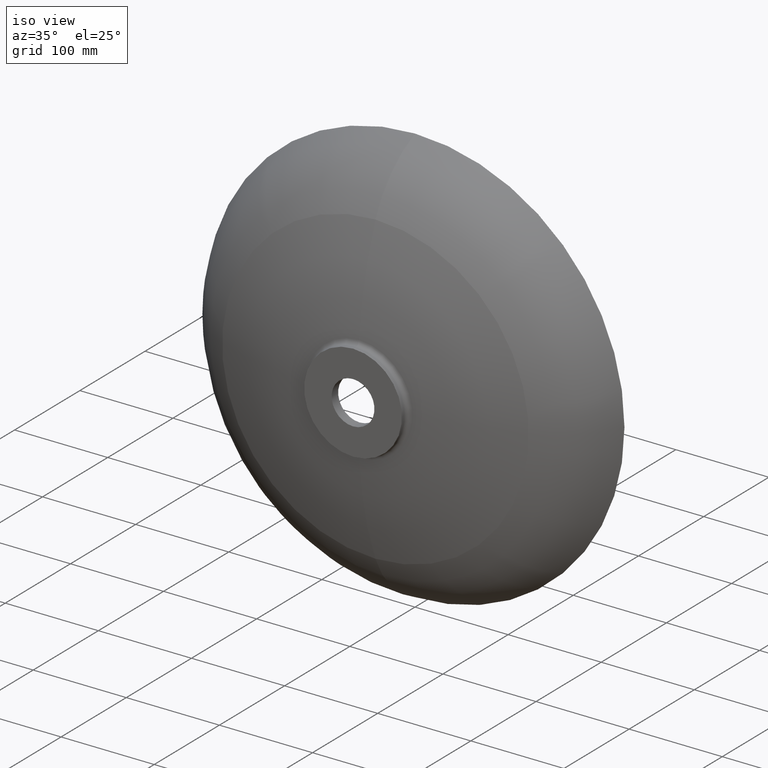
[diagram: clean part render]
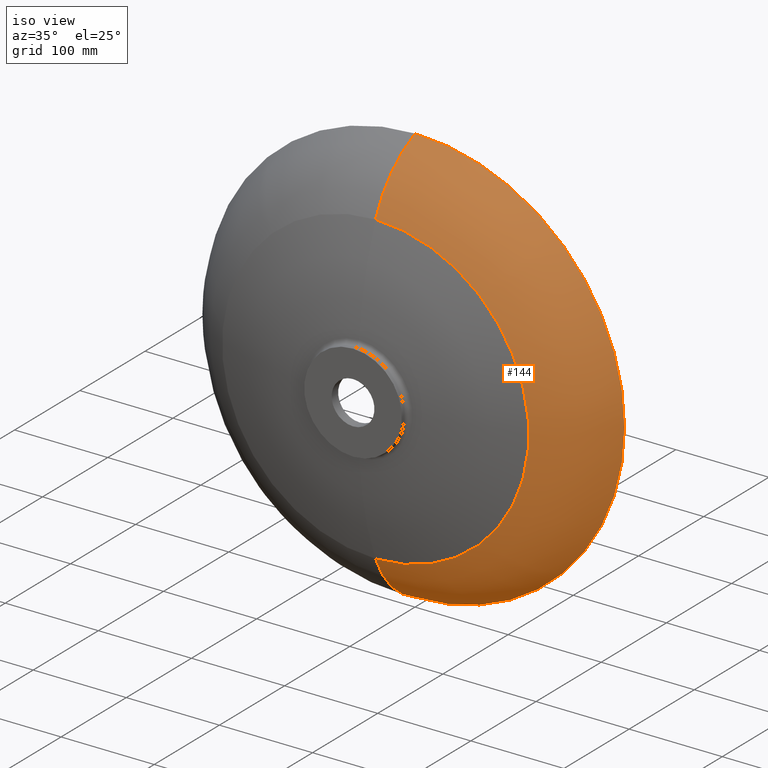
[diagram: tour spotlight — one face highlighted and labeled with its STEP entity id]
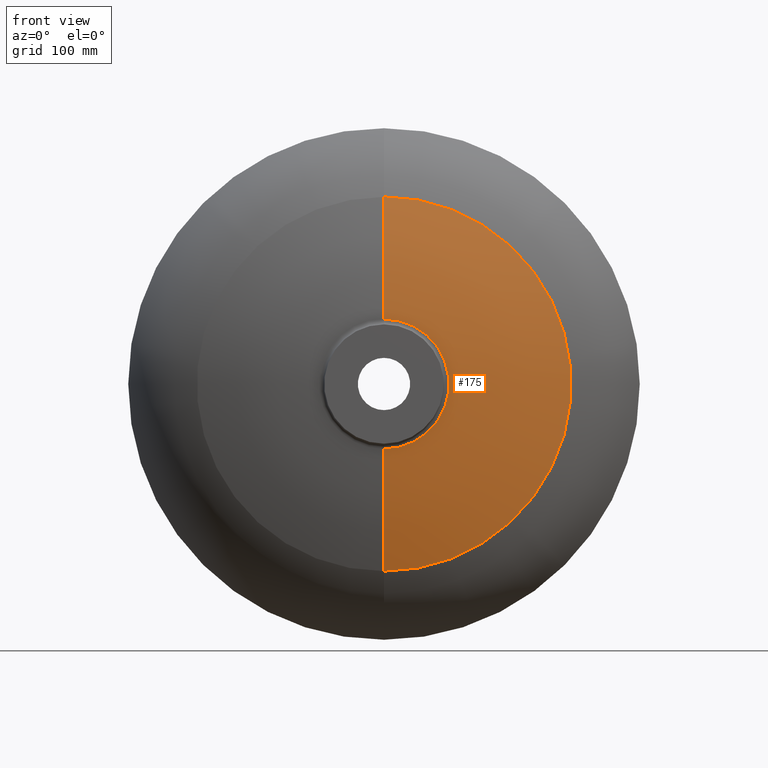
[diagram: tour spotlight — one face highlighted and labeled with its STEP entity id]
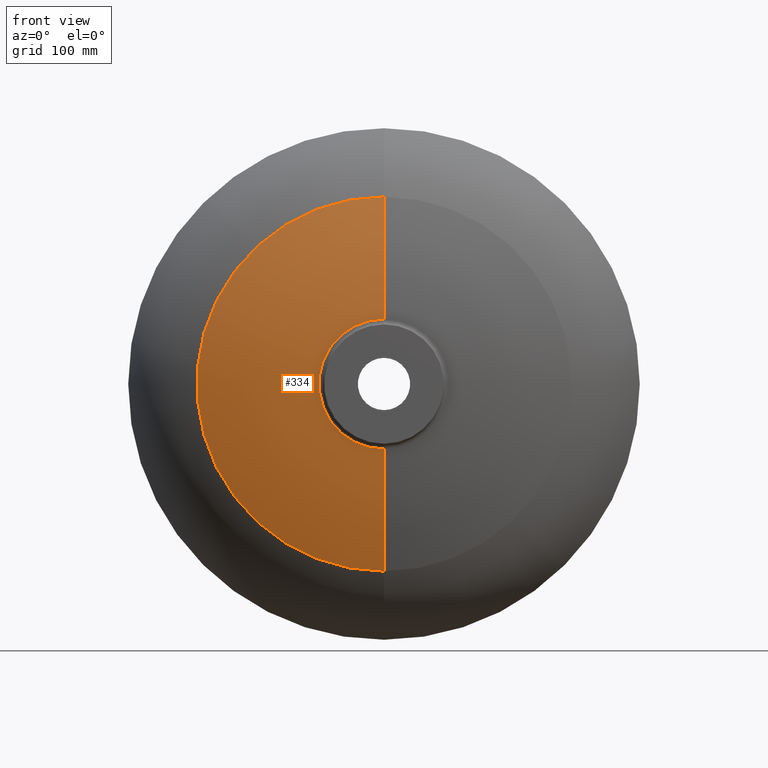
[diagram: tour spotlight — one face highlighted and labeled with its STEP entity id]
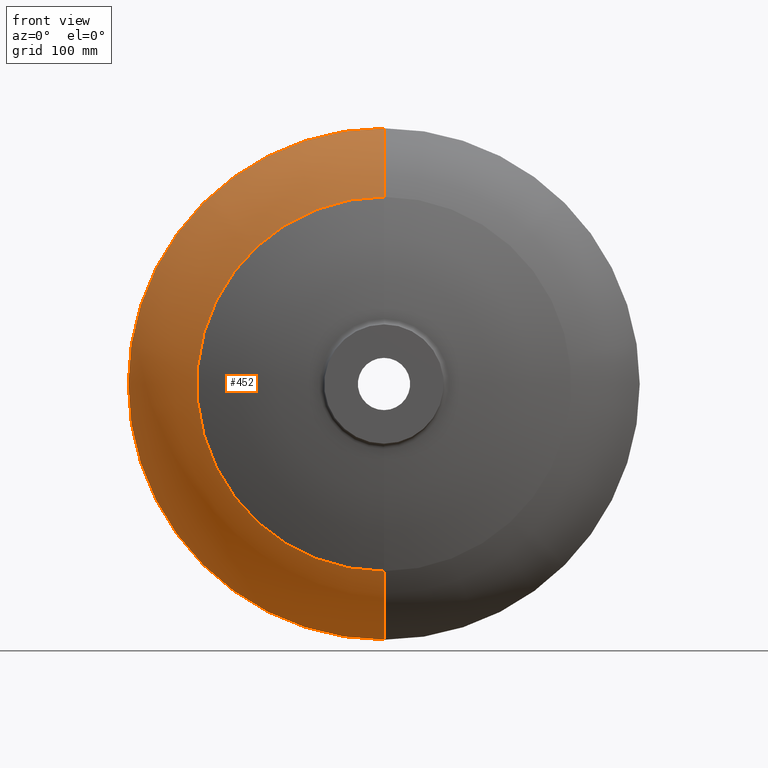
[diagram: tour spotlight — one face highlighted and labeled with its STEP entity id]
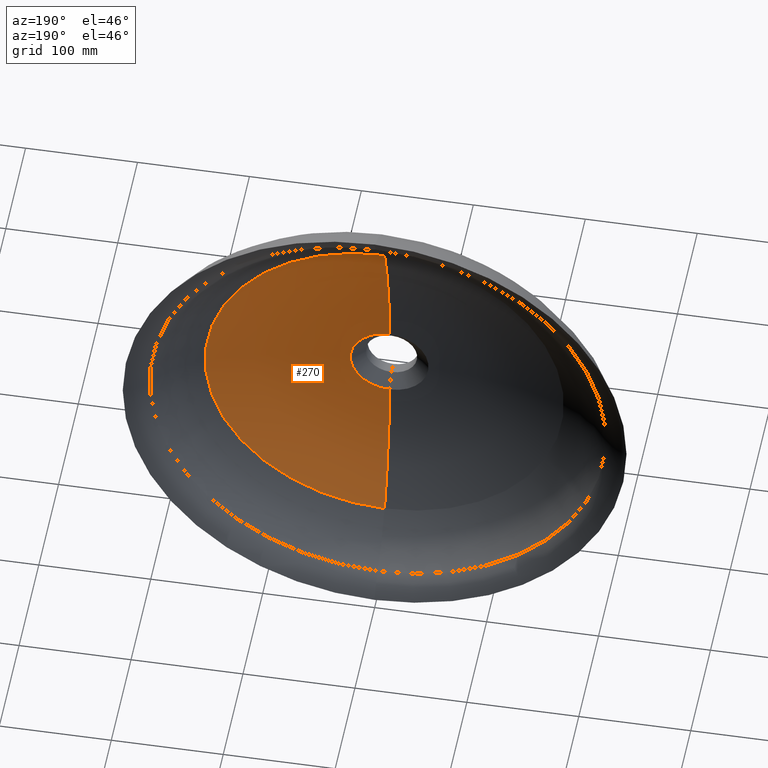
[diagram: tour spotlight — one face highlighted and labeled with its STEP entity id]
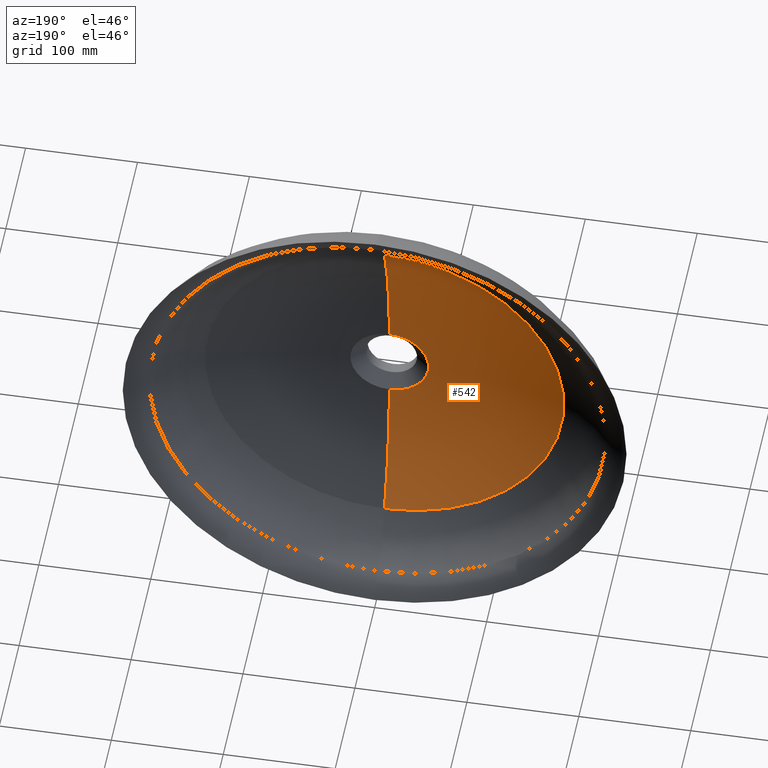
[diagram: tour spotlight — one face highlighted and labeled with its STEP entity id]
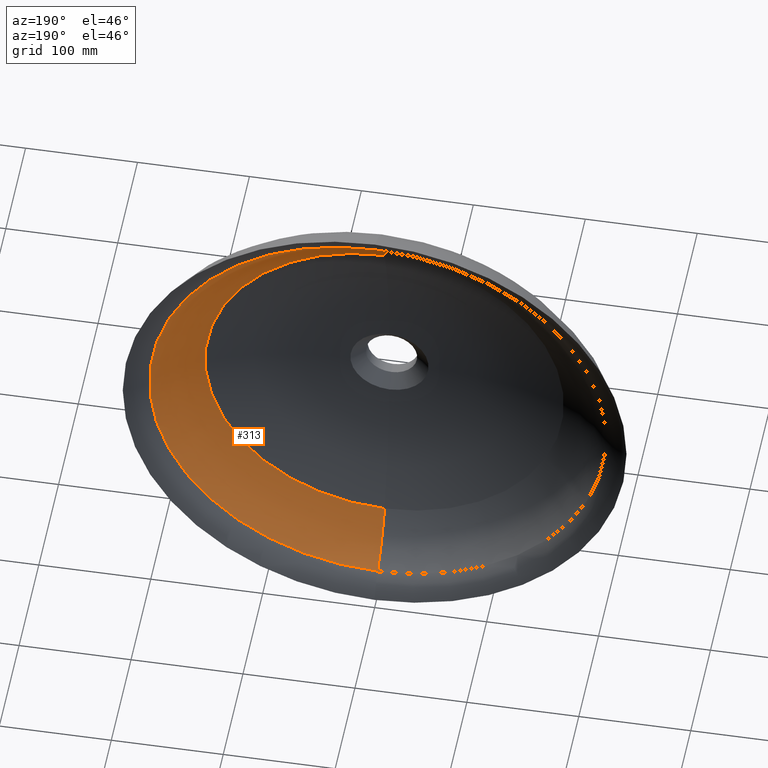
[diagram: tour spotlight — one face highlighted and labeled with its STEP entity id]
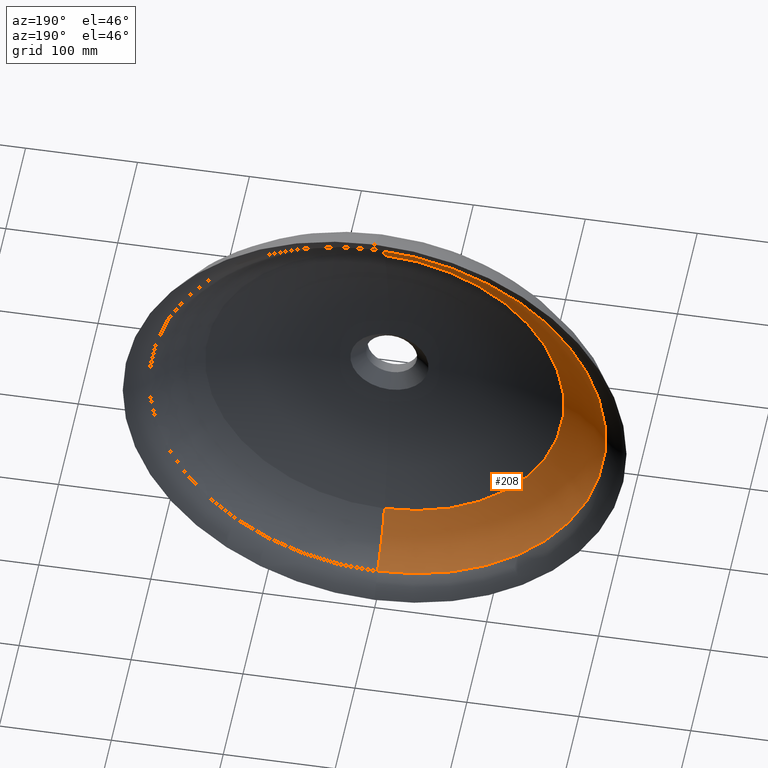
[diagram: tour spotlight — one face highlighted and labeled with its STEP entity id]
A machine part: a face-by-face anatomy tour. The part has 19 B-rep faces; the first image is the clean iso view, then the 8 largest visible faces are spotlighted one at a time (largest first), each with its STEP entity span.

Face 1 — iso view, entity #144. In plain terms, the highlighted toroidal blend (fillet) surface has major radius 121.91 mm and minor (blend) radius 111.45 mm.
Definition (entity closure, byte-faithful):
#4 = TOROIDAL_SURFACE ( 'NONE', #234, 121.9101096011546872, 111.4495278588973406 ) ;
#12 = DIRECTION ( 'NONE',  ( 0.0000000000000000000, 0.0000000000000000000, 1.000000000000000000 ) ) ;
#71 = EDGE_CURVE ( 'NONE', #429, #230, #428, .T. ) ;
#113 = CARTESIAN_POINT ( 'NONE',  ( 2.775557561562891351E-14, 42.34940091105409010, 0.0000000000000000000 ) ) ;
#144 = ADVANCED_FACE ( 'NONE', ( #252 ), #4, .T. ) ;
#167 = DIRECTION ( 'NONE',  ( -1.000000000000000000, 0.0000000000000000000, 0.0000000000000000000 ) ) ;
#178 = CARTESIAN_POINT ( 'NONE',  ( 2.775557561562891351E-14, -3.469446951953614189E-15, 225.0000000000000284 ) ) ;
#184 = DIRECTION ( 'NONE',  ( 0.0000000000000000000, 0.0000000000000000000, 1.000000000000000000 ) ) ;
#220 = CARTESIAN_POINT ( 'NONE',  ( 2.135878279796443735E-14, -60.57357038483590372, 164.6635800988411518 ) ) ;
#230 = VERTEX_POINT ( 'NONE', #235 ) ;
#234 = AXIS2_PLACEMENT_3D ( 'NONE', #113, #464, #238 ) ;
#235 = CARTESIAN_POINT ( 'NONE',  ( 5.531012859644435971E-14, -3.469446951953614189E-15, -225.0000000000000284 ) ) ;
#238 = DIRECTION ( 'NONE',  ( 0.0000000000000000000, 0.0000000000000000000, 1.000000000000000000 ) ) ;
#252 = FACE_OUTER_BOUND ( 'NONE', #440, .T. ) ;
#266 = CIRCLE ( 'NONE', #451, 164.6635800988411518 ) ;
#302 = ORIENTED_EDGE ( 'NONE', *, *, #422, .F. ) ;
#326 = AXIS2_PLACEMENT_3D ( 'NONE', #525, #167, #12 ) ;
#333 = ORIENTED_EDGE ( 'NONE', *, *, #360, .F. ) ;
#340 = DIRECTION ( 'NONE',  ( 0.0000000000000000000, 0.0000000000000000000, 1.000000000000000000 ) ) ;
#346 = EDGE_CURVE ( 'NONE', #357, #429, #266, .T. ) ;
#357 = VERTEX_POINT ( 'NONE', #220 ) ;
#360 = EDGE_CURVE ( 'NONE', #357, #472, #365, .T. ) ;
#362 = DIRECTION ( 'NONE',  ( -0.0000000000000000000, 1.000000000000000000, -0.0000000000000000000 ) ) ;
#363 = ORIENTED_EDGE ( 'NONE', *, *, #71, .T. ) ;
#365 = CIRCLE ( 'NONE', #326, 111.4495278588973264 ) ;
#372 = AXIS2_PLACEMENT_3D ( 'NONE', #479, #362, #184 ) ;
#394 = AXIS2_PLACEMENT_3D ( 'NONE', #411, #420, #417 ) ;
#397 = CIRCLE ( 'NONE', #372, 225.0000000000000284 ) ;
#409 = CARTESIAN_POINT ( 'NONE',  ( 5.161558842124611715E-14, -60.57357038483590372, -164.6635800988411518 ) ) ;
#411 = CARTESIAN_POINT ( 'NONE',  ( 4.268525816630462138E-14, 42.34940091105409010, -121.9101096011546872 ) ) ;
#417 = DIRECTION ( 'NONE',  ( 1.224646799147353700E-16, 0.0000000000000000000, -1.000000000000000000 ) ) ;
#420 = DIRECTION ( 'NONE',  ( 1.000000000000000000, 0.0000000000000000000, 1.224646799147353207E-16 ) ) ;
#422 = EDGE_CURVE ( 'NONE', #472, #230, #397, .T. ) ;
#428 = CIRCLE ( 'NONE', #394, 111.4495278588973264 ) ;
#429 = VERTEX_POINT ( 'NONE', #409 ) ;
#440 = EDGE_LOOP ( 'NONE', ( #488, #363, #302, #333 ) ) ;
#446 = CARTESIAN_POINT ( 'NONE',  ( 2.135878279796443735E-14, -60.57357038483590372, 0.0000000000000000000 ) ) ;
#451 = AXIS2_PLACEMENT_3D ( 'NONE', #446, #458, #340 ) ;
#458 = DIRECTION ( 'NONE',  ( -0.0000000000000000000, 1.000000000000000000, -0.0000000000000000000 ) ) ;
#464 = DIRECTION ( 'NONE',  ( -0.0000000000000000000, 1.000000000000000000, -0.0000000000000000000 ) ) ;
#472 = VERTEX_POINT ( 'NONE', #178 ) ;
#479 = CARTESIAN_POINT ( 'NONE',  ( 2.135878279796443735E-14, 0.0000000000000000000, 0.0000000000000000000 ) ) ;
#488 = ORIENTED_EDGE ( 'NONE', *, *, #346, .T. ) ;
#525 = CARTESIAN_POINT ( 'NONE',  ( 2.775557561562891351E-14, 42.34940091105409010, 121.9101096011546872 ) ) ;

Face 2 — front view, entity #175. In plain terms, the highlighted toroidal blend (fillet) surface has major radius 34.9175 mm and minor (blend) radius 338.221 mm.
Definition (entity closure, byte-faithful):
#5 = AXIS2_PLACEMENT_3D ( 'NONE', #174, #145, #434 ) ;
#46 = ORIENTED_EDGE ( 'NONE', *, *, #346, .F. ) ;
#54 = ORIENTED_EDGE ( 'NONE', *, *, #463, .F. ) ;
#70 = DIRECTION ( 'NONE',  ( -0.0000000000000000000, 1.000000000000000000, -0.0000000000000000000 ) ) ;
#114 = CARTESIAN_POINT ( 'NONE',  ( 2.081668171172168513E-14, 251.7717953764113190, 0.0000000000000000000 ) ) ;
#124 = ORIENTED_EDGE ( 'NONE', *, *, #373, .T. ) ;
#141 = TOROIDAL_SURFACE ( 'NONE', #505, 34.91753592594216826, 338.2213232353086596 ) ;
#142 = CIRCLE ( 'NONE', #5, 338.2213232353086596 ) ;
#145 = DIRECTION ( 'NONE',  ( -1.000000000000000000, 0.0000000000000000000, 0.0000000000000000000 ) ) ;
#147 = ORIENTED_EDGE ( 'NONE', *, *, #297, .T. ) ;
#156 = AXIS2_PLACEMENT_3D ( 'NONE', #438, #369, #345 ) ;
#161 = AXIS2_PLACEMENT_3D ( 'NONE', #206, #296, #166 ) ;
#166 = DIRECTION ( 'NONE',  ( 0.0000000000000000000, 0.0000000000000000000, 1.000000000000000000 ) ) ;
#174 = CARTESIAN_POINT ( 'NONE',  ( 2.081668171172168513E-14, 251.7717953764113190, 34.91753592594216826 ) ) ;
#175 = ADVANCED_FACE ( 'NONE', ( #249 ), #141, .T. ) ;
#204 = CARTESIAN_POINT ( 'NONE',  ( 3.440013347177337835E-14, -85.71664273050069482, -57.17102183714597885 ) ) ;
#206 = CARTESIAN_POINT ( 'NONE',  ( 2.135878279796443735E-14, -85.71664273050069482, 0.0000000000000000000 ) ) ;
#220 = CARTESIAN_POINT ( 'NONE',  ( 2.135878279796443735E-14, -60.57357038483590372, 164.6635800988411518 ) ) ;
#249 = FACE_OUTER_BOUND ( 'NONE', #406, .T. ) ;
#257 = VERTEX_POINT ( 'NONE', #204 ) ;
#266 = CIRCLE ( 'NONE', #451, 164.6635800988411518 ) ;
#274 = DIRECTION ( 'NONE',  ( 0.0000000000000000000, 0.0000000000000000000, 1.000000000000000000 ) ) ;
#285 = CIRCLE ( 'NONE', #161, 57.17102183714597885 ) ;
#296 = DIRECTION ( 'NONE',  ( -0.0000000000000000000, 1.000000000000000000, -0.0000000000000000000 ) ) ;
#297 = EDGE_CURVE ( 'NONE', #377, #257, #285, .T. ) ;
#338 = CIRCLE ( 'NONE', #156, 338.2213232353086596 ) ;
#340 = DIRECTION ( 'NONE',  ( 0.0000000000000000000, 0.0000000000000000000, 1.000000000000000000 ) ) ;
#345 = DIRECTION ( 'NONE',  ( 1.224646799147352961E-16, 0.0000000000000000000, -1.000000000000000000 ) ) ;
#346 = EDGE_CURVE ( 'NONE', #357, #429, #266, .T. ) ;
#357 = VERTEX_POINT ( 'NONE', #220 ) ;
#369 = DIRECTION ( 'NONE',  ( 1.000000000000000000, 0.0000000000000000000, 1.224646799147353207E-16 ) ) ;
#373 = EDGE_CURVE ( 'NONE', #257, #429, #338, .T. ) ;
#377 = VERTEX_POINT ( 'NONE', #449 ) ;
#406 = EDGE_LOOP ( 'NONE', ( #147, #124, #46, #54 ) ) ;
#409 = CARTESIAN_POINT ( 'NONE',  ( 5.161558842124611715E-14, -60.57357038483590372, -164.6635800988411518 ) ) ;
#429 = VERTEX_POINT ( 'NONE', #409 ) ;
#434 = DIRECTION ( 'NONE',  ( 0.0000000000000000000, 0.0000000000000000000, 1.000000000000000000 ) ) ;
#438 = CARTESIAN_POINT ( 'NONE',  ( 2.509284657230346489E-14, 251.7717953764113190, -34.91753592594216826 ) ) ;
#446 = CARTESIAN_POINT ( 'NONE',  ( 2.135878279796443735E-14, -60.57357038483590372, 0.0000000000000000000 ) ) ;
#449 = CARTESIAN_POINT ( 'NONE',  ( 2.135878279796443735E-14, -85.71664273050069482, 57.17102183714597885 ) ) ;
#451 = AXIS2_PLACEMENT_3D ( 'NONE', #446, #458, #340 ) ;
#458 = DIRECTION ( 'NONE',  ( -0.0000000000000000000, 1.000000000000000000, -0.0000000000000000000 ) ) ;
#463 = EDGE_CURVE ( 'NONE', #377, #357, #142, .T. ) ;
#505 = AXIS2_PLACEMENT_3D ( 'NONE', #114, #70, #274 ) ;

Face 3 — front view, entity #334. In plain terms, the highlighted toroidal blend (fillet) surface has major radius 34.9175 mm and minor (blend) radius 338.221 mm.
Definition (entity closure, byte-faithful):
#5 = AXIS2_PLACEMENT_3D ( 'NONE', #174, #145, #434 ) ;
#35 = TOROIDAL_SURFACE ( 'NONE', #109, 34.91753592594216826, 338.2213232353086596 ) ;
#84 = FACE_OUTER_BOUND ( 'NONE', #323, .T. ) ;
#109 = AXIS2_PLACEMENT_3D ( 'NONE', #515, #416, #498 ) ;
#117 = CARTESIAN_POINT ( 'NONE',  ( 2.135878279796443735E-14, -60.57357038483590372, 0.0000000000000000000 ) ) ;
#142 = CIRCLE ( 'NONE', #5, 338.2213232353086596 ) ;
#145 = DIRECTION ( 'NONE',  ( -1.000000000000000000, 0.0000000000000000000, 0.0000000000000000000 ) ) ;
#148 = ORIENTED_EDGE ( 'NONE', *, *, #463, .T. ) ;
#156 = AXIS2_PLACEMENT_3D ( 'NONE', #438, #369, #345 ) ;
#174 = CARTESIAN_POINT ( 'NONE',  ( 2.081668171172168513E-14, 251.7717953764113190, 34.91753592594216826 ) ) ;
#181 = DIRECTION ( 'NONE',  ( -0.0000000000000000000, 1.000000000000000000, -0.0000000000000000000 ) ) ;
#187 = DIRECTION ( 'NONE',  ( 0.0000000000000000000, 0.0000000000000000000, 1.000000000000000000 ) ) ;
#199 = CARTESIAN_POINT ( 'NONE',  ( 2.135878279796443735E-14, -85.71664273050069482, 0.0000000000000000000 ) ) ;
#204 = CARTESIAN_POINT ( 'NONE',  ( 3.440013347177337835E-14, -85.71664273050069482, -57.17102183714597885 ) ) ;
#220 = CARTESIAN_POINT ( 'NONE',  ( 2.135878279796443735E-14, -60.57357038483590372, 164.6635800988411518 ) ) ;
#247 = DIRECTION ( 'NONE',  ( 0.0000000000000000000, 0.0000000000000000000, 1.000000000000000000 ) ) ;
#257 = VERTEX_POINT ( 'NONE', #204 ) ;
#261 = DIRECTION ( 'NONE',  ( -0.0000000000000000000, 1.000000000000000000, -0.0000000000000000000 ) ) ;
#303 = CIRCLE ( 'NONE', #392, 57.17102183714597885 ) ;
#323 = EDGE_LOOP ( 'NONE', ( #423, #355, #148, #348 ) ) ;
#327 = CIRCLE ( 'NONE', #450, 164.6635800988411518 ) ;
#334 = ADVANCED_FACE ( 'NONE', ( #84 ), #35, .T. ) ;
#338 = CIRCLE ( 'NONE', #156, 338.2213232353086596 ) ;
#345 = DIRECTION ( 'NONE',  ( 1.224646799147352961E-16, 0.0000000000000000000, -1.000000000000000000 ) ) ;
#348 = ORIENTED_EDGE ( 'NONE', *, *, #500, .F. ) ;
#355 = ORIENTED_EDGE ( 'NONE', *, *, #386, .T. ) ;
#357 = VERTEX_POINT ( 'NONE', #220 ) ;
#369 = DIRECTION ( 'NONE',  ( 1.000000000000000000, 0.0000000000000000000, 1.224646799147353207E-16 ) ) ;
#373 = EDGE_CURVE ( 'NONE', #257, #429, #338, .T. ) ;
#377 = VERTEX_POINT ( 'NONE', #449 ) ;
#386 = EDGE_CURVE ( 'NONE', #257, #377, #303, .T. ) ;
#392 = AXIS2_PLACEMENT_3D ( 'NONE', #199, #181, #247 ) ;
#409 = CARTESIAN_POINT ( 'NONE',  ( 5.161558842124611715E-14, -60.57357038483590372, -164.6635800988411518 ) ) ;
#416 = DIRECTION ( 'NONE',  ( -0.0000000000000000000, 1.000000000000000000, -0.0000000000000000000 ) ) ;
#423 = ORIENTED_EDGE ( 'NONE', *, *, #373, .F. ) ;
#429 = VERTEX_POINT ( 'NONE', #409 ) ;
#434 = DIRECTION ( 'NONE',  ( 0.0000000000000000000, 0.0000000000000000000, 1.000000000000000000 ) ) ;
#438 = CARTESIAN_POINT ( 'NONE',  ( 2.509284657230346489E-14, 251.7717953764113190, -34.91753592594216826 ) ) ;
#449 = CARTESIAN_POINT ( 'NONE',  ( 2.135878279796443735E-14, -85.71664273050069482, 57.17102183714597885 ) ) ;
#450 = AXIS2_PLACEMENT_3D ( 'NONE', #117, #261, #187 ) ;
#463 = EDGE_CURVE ( 'NONE', #377, #357, #142, .T. ) ;
#498 = DIRECTION ( 'NONE',  ( 0.0000000000000000000, 0.0000000000000000000, 1.000000000000000000 ) ) ;
#500 = EDGE_CURVE ( 'NONE', #429, #357, #327, .T. ) ;
#515 = CARTESIAN_POINT ( 'NONE',  ( 2.081668171172168513E-14, 251.7717953764113190, 0.0000000000000000000 ) ) ;

Face 4 — front view, entity #452. In plain terms, the highlighted toroidal blend (fillet) surface has major radius 121.91 mm and minor (blend) radius 111.45 mm.
Definition (entity closure, byte-faithful):
#12 = DIRECTION ( 'NONE',  ( 0.0000000000000000000, 0.0000000000000000000, 1.000000000000000000 ) ) ;
#49 = EDGE_LOOP ( 'NONE', ( #232, #177, #95, #538 ) ) ;
#56 = DIRECTION ( 'NONE',  ( -0.0000000000000000000, 1.000000000000000000, -0.0000000000000000000 ) ) ;
#71 = EDGE_CURVE ( 'NONE', #429, #230, #428, .T. ) ;
#89 = AXIS2_PLACEMENT_3D ( 'NONE', #201, #402, #218 ) ;
#95 = ORIENTED_EDGE ( 'NONE', *, *, #360, .T. ) ;
#117 = CARTESIAN_POINT ( 'NONE',  ( 2.135878279796443735E-14, -60.57357038483590372, 0.0000000000000000000 ) ) ;
#158 = DIRECTION ( 'NONE',  ( 0.0000000000000000000, 0.0000000000000000000, 1.000000000000000000 ) ) ;
#167 = DIRECTION ( 'NONE',  ( -1.000000000000000000, 0.0000000000000000000, 0.0000000000000000000 ) ) ;
#177 = ORIENTED_EDGE ( 'NONE', *, *, #500, .T. ) ;
#178 = CARTESIAN_POINT ( 'NONE',  ( 2.775557561562891351E-14, -3.469446951953614189E-15, 225.0000000000000284 ) ) ;
#179 = FACE_OUTER_BOUND ( 'NONE', #49, .T. ) ;
#186 = AXIS2_PLACEMENT_3D ( 'NONE', #188, #56, #158 ) ;
#187 = DIRECTION ( 'NONE',  ( 0.0000000000000000000, 0.0000000000000000000, 1.000000000000000000 ) ) ;
#188 = CARTESIAN_POINT ( 'NONE',  ( 2.135878279796443735E-14, 0.0000000000000000000, 0.0000000000000000000 ) ) ;
#201 = CARTESIAN_POINT ( 'NONE',  ( 2.775557561562891351E-14, 42.34940091105409010, 0.0000000000000000000 ) ) ;
#218 = DIRECTION ( 'NONE',  ( 0.0000000000000000000, 0.0000000000000000000, 1.000000000000000000 ) ) ;
#220 = CARTESIAN_POINT ( 'NONE',  ( 2.135878279796443735E-14, -60.57357038483590372, 164.6635800988411518 ) ) ;
#230 = VERTEX_POINT ( 'NONE', #235 ) ;
#232 = ORIENTED_EDGE ( 'NONE', *, *, #71, .F. ) ;
#235 = CARTESIAN_POINT ( 'NONE',  ( 5.531012859644435971E-14, -3.469446951953614189E-15, -225.0000000000000284 ) ) ;
#261 = DIRECTION ( 'NONE',  ( -0.0000000000000000000, 1.000000000000000000, -0.0000000000000000000 ) ) ;
#304 = EDGE_CURVE ( 'NONE', #230, #472, #435, .T. ) ;
#326 = AXIS2_PLACEMENT_3D ( 'NONE', #525, #167, #12 ) ;
#327 = CIRCLE ( 'NONE', #450, 164.6635800988411518 ) ;
#357 = VERTEX_POINT ( 'NONE', #220 ) ;
#360 = EDGE_CURVE ( 'NONE', #357, #472, #365, .T. ) ;
#365 = CIRCLE ( 'NONE', #326, 111.4495278588973264 ) ;
#394 = AXIS2_PLACEMENT_3D ( 'NONE', #411, #420, #417 ) ;
#402 = DIRECTION ( 'NONE',  ( -0.0000000000000000000, 1.000000000000000000, -0.0000000000000000000 ) ) ;
#409 = CARTESIAN_POINT ( 'NONE',  ( 5.161558842124611715E-14, -60.57357038483590372, -164.6635800988411518 ) ) ;
#411 = CARTESIAN_POINT ( 'NONE',  ( 4.268525816630462138E-14, 42.34940091105409010, -121.9101096011546872 ) ) ;
#417 = DIRECTION ( 'NONE',  ( 1.224646799147353700E-16, 0.0000000000000000000, -1.000000000000000000 ) ) ;
#420 = DIRECTION ( 'NONE',  ( 1.000000000000000000, 0.0000000000000000000, 1.224646799147353207E-16 ) ) ;
#428 = CIRCLE ( 'NONE', #394, 111.4495278588973264 ) ;
#429 = VERTEX_POINT ( 'NONE', #409 ) ;
#435 = CIRCLE ( 'NONE', #186, 225.0000000000000284 ) ;
#450 = AXIS2_PLACEMENT_3D ( 'NONE', #117, #261, #187 ) ;
#452 = ADVANCED_FACE ( 'NONE', ( #179 ), #512, .T. ) ;
#472 = VERTEX_POINT ( 'NONE', #178 ) ;
#500 = EDGE_CURVE ( 'NONE', #429, #357, #327, .T. ) ;
#512 = TOROIDAL_SURFACE ( 'NONE', #89, 121.9101096011546872, 111.4495278588973406 ) ;
#525 = CARTESIAN_POINT ( 'NONE',  ( 2.775557561562891351E-14, 42.34940091105409010, 121.9101096011546872 ) ) ;
#538 = ORIENTED_EDGE ( 'NONE', *, *, #304, .F. ) ;

Face 5 — auxiliary view, entity #270. In plain terms, the highlighted toroidal blend (fillet) surface has major radius 34.9175 mm and minor (blend) radius 326.772 mm.
Definition (entity closure, byte-faithful):
#43 = VERTEX_POINT ( 'NONE', #368 ) ;
#48 = CARTESIAN_POINT ( 'NONE',  ( 2.135878279796443735E-14, -49.99999999999998579, 0.0000000000000000000 ) ) ;
#52 = AXIS2_PLACEMENT_3D ( 'NONE', #404, #194, #276 ) ;
#86 = CARTESIAN_POINT ( 'NONE',  ( 2.081668171172168513E-14, -49.99999999999998579, 160.2713941386855936 ) ) ;
#87 = DIRECTION ( 'NONE',  ( 0.0000000000000000000, 0.0000000000000000000, 1.000000000000000000 ) ) ;
#108 = CIRCLE ( 'NONE', #384, 326.7717953764113190 ) ;
#134 = EDGE_CURVE ( 'NONE', #183, #306, #408, .T. ) ;
#173 = ORIENTED_EDGE ( 'NONE', *, *, #473, .F. ) ;
#183 = VERTEX_POINT ( 'NONE', #86 ) ;
#189 = DIRECTION ( 'NONE',  ( 1.000000000000000000, 0.0000000000000000000, 1.224646799147353207E-16 ) ) ;
#194 = DIRECTION ( 'NONE',  ( -1.000000000000000000, 0.0000000000000000000, 0.0000000000000000000 ) ) ;
#200 = CARTESIAN_POINT ( 'NONE',  ( 2.081668171172168513E-14, 251.7717953764113190, 0.0000000000000000000 ) ) ;
#207 = CARTESIAN_POINT ( 'NONE',  ( 2.135878279796443735E-14, -75.00000000000001421, 0.0000000000000000000 ) ) ;
#211 = DIRECTION ( 'NONE',  ( 0.0000000000000000000, 0.0000000000000000000, 1.000000000000000000 ) ) ;
#213 = DIRECTION ( 'NONE',  ( -0.0000000000000000000, 1.000000000000000000, -0.0000000000000000000 ) ) ;
#248 = DIRECTION ( 'NONE',  ( -0.0000000000000000000, 1.000000000000000000, -0.0000000000000000000 ) ) ;
#263 = EDGE_CURVE ( 'NONE', #43, #492, #481, .T. ) ;
#265 = ORIENTED_EDGE ( 'NONE', *, *, #486, .T. ) ;
#268 = AXIS2_PLACEMENT_3D ( 'NONE', #200, #248, #499 ) ;
#270 = ADVANCED_FACE ( 'NONE', ( #354 ), #461, .F. ) ;
#276 = DIRECTION ( 'NONE',  ( 0.0000000000000000000, 0.0000000000000000000, 1.000000000000000000 ) ) ;
#305 = AXIS2_PLACEMENT_3D ( 'NONE', #48, #330, #87 ) ;
#306 = VERTEX_POINT ( 'NONE', #465 ) ;
#315 = DIRECTION ( 'NONE',  ( 1.224646799147353207E-16, 0.0000000000000000000, -1.000000000000000000 ) ) ;
#330 = DIRECTION ( 'NONE',  ( -0.0000000000000000000, 1.000000000000000000, -0.0000000000000000000 ) ) ;
#354 = FACE_OUTER_BOUND ( 'NONE', #358, .T. ) ;
#358 = EDGE_LOOP ( 'NONE', ( #173, #396, #265, #412 ) ) ;
#368 = CARTESIAN_POINT ( 'NONE',  ( 2.135878279796443735E-14, -75.00000000000001421, 34.91753592594216826 ) ) ;
#375 = CARTESIAN_POINT ( 'NONE',  ( 2.509284657230346489E-14, 251.7717953764113190, -34.91753592594216826 ) ) ;
#384 = AXIS2_PLACEMENT_3D ( 'NONE', #375, #189, #315 ) ;
#396 = ORIENTED_EDGE ( 'NONE', *, *, #263, .F. ) ;
#404 = CARTESIAN_POINT ( 'NONE',  ( 2.081668171172168513E-14, 251.7717953764113190, 34.91753592594216826 ) ) ;
#408 = CIRCLE ( 'NONE', #305, 160.2713941386856220 ) ;
#412 = ORIENTED_EDGE ( 'NONE', *, *, #134, .T. ) ;
#461 = TOROIDAL_SURFACE ( 'NONE', #268, 34.91753592594216826, 326.7717953764113190 ) ;
#465 = CARTESIAN_POINT ( 'NONE',  ( 4.044426669440420666E-14, -49.99999999999998579, -160.2713941386855936 ) ) ;
#471 = CARTESIAN_POINT ( 'NONE',  ( 3.276855663335383104E-14, -75.00000000000001421, -34.91753592594216826 ) ) ;
#473 = EDGE_CURVE ( 'NONE', #492, #306, #108, .T. ) ;
#481 = CIRCLE ( 'NONE', #511, 34.91753592594216826 ) ;
#486 = EDGE_CURVE ( 'NONE', #43, #183, #539, .T. ) ;
#492 = VERTEX_POINT ( 'NONE', #471 ) ;
#499 = DIRECTION ( 'NONE',  ( 0.0000000000000000000, 0.0000000000000000000, 1.000000000000000000 ) ) ;
#511 = AXIS2_PLACEMENT_3D ( 'NONE', #207, #213, #211 ) ;
#539 = CIRCLE ( 'NONE', #52, 326.7717953764113190 ) ;

Face 6 — auxiliary view, entity #542. In plain terms, the highlighted toroidal blend (fillet) surface has major radius 34.9175 mm and minor (blend) radius 326.772 mm.
Definition (entity closure, byte-faithful):
#17 = DIRECTION ( 'NONE',  ( -0.0000000000000000000, 1.000000000000000000, -0.0000000000000000000 ) ) ;
#23 = AXIS2_PLACEMENT_3D ( 'NONE', #127, #17, #150 ) ;
#34 = AXIS2_PLACEMENT_3D ( 'NONE', #243, #153, #219 ) ;
#43 = VERTEX_POINT ( 'NONE', #368 ) ;
#52 = AXIS2_PLACEMENT_3D ( 'NONE', #404, #194, #276 ) ;
#86 = CARTESIAN_POINT ( 'NONE',  ( 2.081668171172168513E-14, -49.99999999999998579, 160.2713941386855936 ) ) ;
#93 = DIRECTION ( 'NONE',  ( 0.0000000000000000000, 0.0000000000000000000, 1.000000000000000000 ) ) ;
#108 = CIRCLE ( 'NONE', #384, 326.7717953764113190 ) ;
#120 = DIRECTION ( 'NONE',  ( -0.0000000000000000000, 1.000000000000000000, -0.0000000000000000000 ) ) ;
#126 = CARTESIAN_POINT ( 'NONE',  ( 2.081668171172168513E-14, 251.7717953764113190, 0.0000000000000000000 ) ) ;
#127 = CARTESIAN_POINT ( 'NONE',  ( 2.135878279796443735E-14, -75.00000000000001421, 0.0000000000000000000 ) ) ;
#132 = FACE_OUTER_BOUND ( 'NONE', #239, .T. ) ;
#150 = DIRECTION ( 'NONE',  ( 0.0000000000000000000, 0.0000000000000000000, 1.000000000000000000 ) ) ;
#153 = DIRECTION ( 'NONE',  ( -0.0000000000000000000, 1.000000000000000000, -0.0000000000000000000 ) ) ;
#157 = ORIENTED_EDGE ( 'NONE', *, *, #486, .F. ) ;
#183 = VERTEX_POINT ( 'NONE', #86 ) ;
#189 = DIRECTION ( 'NONE',  ( 1.000000000000000000, 0.0000000000000000000, 1.224646799147353207E-16 ) ) ;
#194 = DIRECTION ( 'NONE',  ( -1.000000000000000000, 0.0000000000000000000, 0.0000000000000000000 ) ) ;
#219 = DIRECTION ( 'NONE',  ( 0.0000000000000000000, 0.0000000000000000000, 1.000000000000000000 ) ) ;
#239 = EDGE_LOOP ( 'NONE', ( #308, #312, #419, #157 ) ) ;
#243 = CARTESIAN_POINT ( 'NONE',  ( 2.135878279796443735E-14, -49.99999999999998579, 0.0000000000000000000 ) ) ;
#267 = CIRCLE ( 'NONE', #23, 34.91753592594216826 ) ;
#276 = DIRECTION ( 'NONE',  ( 0.0000000000000000000, 0.0000000000000000000, 1.000000000000000000 ) ) ;
#277 = TOROIDAL_SURFACE ( 'NONE', #294, 34.91753592594216826, 326.7717953764113190 ) ;
#294 = AXIS2_PLACEMENT_3D ( 'NONE', #126, #120, #93 ) ;
#306 = VERTEX_POINT ( 'NONE', #465 ) ;
#308 = ORIENTED_EDGE ( 'NONE', *, *, #545, .F. ) ;
#312 = ORIENTED_EDGE ( 'NONE', *, *, #473, .T. ) ;
#315 = DIRECTION ( 'NONE',  ( 1.224646799147353207E-16, 0.0000000000000000000, -1.000000000000000000 ) ) ;
#368 = CARTESIAN_POINT ( 'NONE',  ( 2.135878279796443735E-14, -75.00000000000001421, 34.91753592594216826 ) ) ;
#375 = CARTESIAN_POINT ( 'NONE',  ( 2.509284657230346489E-14, 251.7717953764113190, -34.91753592594216826 ) ) ;
#384 = AXIS2_PLACEMENT_3D ( 'NONE', #375, #189, #315 ) ;
#399 = EDGE_CURVE ( 'NONE', #306, #183, #497, .T. ) ;
#404 = CARTESIAN_POINT ( 'NONE',  ( 2.081668171172168513E-14, 251.7717953764113190, 34.91753592594216826 ) ) ;
#419 = ORIENTED_EDGE ( 'NONE', *, *, #399, .T. ) ;
#465 = CARTESIAN_POINT ( 'NONE',  ( 4.044426669440420666E-14, -49.99999999999998579, -160.2713941386855936 ) ) ;
#471 = CARTESIAN_POINT ( 'NONE',  ( 3.276855663335383104E-14, -75.00000000000001421, -34.91753592594216826 ) ) ;
#473 = EDGE_CURVE ( 'NONE', #492, #306, #108, .T. ) ;
#486 = EDGE_CURVE ( 'NONE', #43, #183, #539, .T. ) ;
#492 = VERTEX_POINT ( 'NONE', #471 ) ;
#497 = CIRCLE ( 'NONE', #34, 160.2713941386856220 ) ;
#539 = CIRCLE ( 'NONE', #52, 326.7717953764113190 ) ;
#542 = ADVANCED_FACE ( 'NONE', ( #132 ), #277, .F. ) ;
#545 = EDGE_CURVE ( 'NONE', #492, #43, #267, .T. ) ;

Face 7 — auxiliary view, entity #313. In plain terms, the highlighted toroidal blend (fillet) surface has major radius 121.91 mm and minor (blend) radius 100 mm.
Definition (entity closure, byte-faithful):
#7 = CARTESIAN_POINT ( 'NONE',  ( 4.268525816630462138E-14, 42.34940091105409010, -121.9101096011546872 ) ) ;
#8 = DIRECTION ( 'NONE',  ( -1.000000000000000000, 0.0000000000000000000, 0.0000000000000000000 ) ) ;
#11 = AXIS2_PLACEMENT_3D ( 'NONE', #491, #8, #437 ) ;
#48 = CARTESIAN_POINT ( 'NONE',  ( 2.135878279796443735E-14, -49.99999999999998579, 0.0000000000000000000 ) ) ;
#86 = CARTESIAN_POINT ( 'NONE',  ( 2.081668171172168513E-14, -49.99999999999998579, 160.2713941386855936 ) ) ;
#87 = DIRECTION ( 'NONE',  ( 0.0000000000000000000, 0.0000000000000000000, 1.000000000000000000 ) ) ;
#92 = DIRECTION ( 'NONE',  ( -0.0000000000000000000, 1.000000000000000000, -0.0000000000000000000 ) ) ;
#122 = EDGE_LOOP ( 'NONE', ( #301, #162, #374, #493 ) ) ;
#134 = EDGE_CURVE ( 'NONE', #183, #306, #408, .T. ) ;
#136 = FACE_OUTER_BOUND ( 'NONE', #122, .T. ) ;
#152 = DIRECTION ( 'NONE',  ( 1.000000000000000000, 0.0000000000000000000, 1.224646799147353207E-16 ) ) ;
#162 = ORIENTED_EDGE ( 'NONE', *, *, #134, .F. ) ;
#163 = CARTESIAN_POINT ( 'NONE',  ( 2.775557561562891351E-14, 42.34940091105409010, 0.0000000000000000000 ) ) ;
#172 = AXIS2_PLACEMENT_3D ( 'NONE', #163, #92, #531 ) ;
#183 = VERTEX_POINT ( 'NONE', #86 ) ;
#240 = DIRECTION ( 'NONE',  ( 1.224646799147353454E-16, 0.0000000000000000000, -1.000000000000000000 ) ) ;
#242 = DIRECTION ( 'NONE',  ( -0.0000000000000000000, 1.000000000000000000, -0.0000000000000000000 ) ) ;
#255 = VERTEX_POINT ( 'NONE', #518 ) ;
#289 = EDGE_CURVE ( 'NONE', #255, #318, #398, .T. ) ;
#301 = ORIENTED_EDGE ( 'NONE', *, *, #526, .F. ) ;
#305 = AXIS2_PLACEMENT_3D ( 'NONE', #48, #330, #87 ) ;
#306 = VERTEX_POINT ( 'NONE', #465 ) ;
#313 = ADVANCED_FACE ( 'NONE', ( #136 ), #371, .F. ) ;
#318 = VERTEX_POINT ( 'NONE', #382 ) ;
#330 = DIRECTION ( 'NONE',  ( -0.0000000000000000000, 1.000000000000000000, -0.0000000000000000000 ) ) ;
#371 = TOROIDAL_SURFACE ( 'NONE', #172, 121.9101096011546872, 100.0000000000000284 ) ;
#374 = ORIENTED_EDGE ( 'NONE', *, *, #483, .T. ) ;
#376 = CARTESIAN_POINT ( 'NONE',  ( 2.135878279796443735E-14, -15.00000000000001421, 0.0000000000000000000 ) ) ;
#382 = CARTESIAN_POINT ( 'NONE',  ( 5.271768420044853565E-14, -15.00000000000001421, -203.8310850295710281 ) ) ;
#398 = CIRCLE ( 'NONE', #487, 203.8310850295709997 ) ;
#408 = CIRCLE ( 'NONE', #305, 160.2713941386856220 ) ;
#414 = CIRCLE ( 'NONE', #11, 100.0000000000000142 ) ;
#437 = DIRECTION ( 'NONE',  ( 0.0000000000000000000, 0.0000000000000000000, 1.000000000000000000 ) ) ;
#443 = AXIS2_PLACEMENT_3D ( 'NONE', #7, #152, #240 ) ;
#465 = CARTESIAN_POINT ( 'NONE',  ( 4.044426669440420666E-14, -49.99999999999998579, -160.2713941386855936 ) ) ;
#483 = EDGE_CURVE ( 'NONE', #183, #255, #414, .T. ) ;
#487 = AXIS2_PLACEMENT_3D ( 'NONE', #376, #242, #519 ) ;
#491 = CARTESIAN_POINT ( 'NONE',  ( 2.775557561562891351E-14, 42.34940091105409010, 121.9101096011546872 ) ) ;
#493 = ORIENTED_EDGE ( 'NONE', *, *, #289, .T. ) ;
#501 = CIRCLE ( 'NONE', #443, 100.0000000000000142 ) ;
#518 = CARTESIAN_POINT ( 'NONE',  ( 2.775557561562891351E-14, -15.00000000000001421, 203.8310850295710281 ) ) ;
#519 = DIRECTION ( 'NONE',  ( 0.0000000000000000000, 0.0000000000000000000, 1.000000000000000000 ) ) ;
#526 = EDGE_CURVE ( 'NONE', #306, #318, #501, .T. ) ;
#531 = DIRECTION ( 'NONE',  ( 0.0000000000000000000, 0.0000000000000000000, 1.000000000000000000 ) ) ;

Face 8 — auxiliary view, entity #208. In plain terms, the highlighted toroidal blend (fillet) surface has major radius 121.91 mm and minor (blend) radius 100 mm.
Definition (entity closure, byte-faithful):
#7 = CARTESIAN_POINT ( 'NONE',  ( 4.268525816630462138E-14, 42.34940091105409010, -121.9101096011546872 ) ) ;
#8 = DIRECTION ( 'NONE',  ( -1.000000000000000000, 0.0000000000000000000, 0.0000000000000000000 ) ) ;
#11 = AXIS2_PLACEMENT_3D ( 'NONE', #491, #8, #437 ) ;
#20 = DIRECTION ( 'NONE',  ( 0.0000000000000000000, 0.0000000000000000000, 1.000000000000000000 ) ) ;
#34 = AXIS2_PLACEMENT_3D ( 'NONE', #243, #153, #219 ) ;
#45 = AXIS2_PLACEMENT_3D ( 'NONE', #123, #454, #20 ) ;
#60 = CARTESIAN_POINT ( 'NONE',  ( 2.775557561562891351E-14, 42.34940091105409010, 0.0000000000000000000 ) ) ;
#86 = CARTESIAN_POINT ( 'NONE',  ( 2.081668171172168513E-14, -49.99999999999998579, 160.2713941386855936 ) ) ;
#123 = CARTESIAN_POINT ( 'NONE',  ( 2.135878279796443735E-14, -15.00000000000001421, 0.0000000000000000000 ) ) ;
#152 = DIRECTION ( 'NONE',  ( 1.000000000000000000, 0.0000000000000000000, 1.224646799147353207E-16 ) ) ;
#153 = DIRECTION ( 'NONE',  ( -0.0000000000000000000, 1.000000000000000000, -0.0000000000000000000 ) ) ;
#183 = VERTEX_POINT ( 'NONE', #86 ) ;
#202 = ORIENTED_EDGE ( 'NONE', *, *, #399, .F. ) ;
#208 = ADVANCED_FACE ( 'NONE', ( #336 ), #259, .F. ) ;
#219 = DIRECTION ( 'NONE',  ( 0.0000000000000000000, 0.0000000000000000000, 1.000000000000000000 ) ) ;
#224 = DIRECTION ( 'NONE',  ( 0.0000000000000000000, 0.0000000000000000000, 1.000000000000000000 ) ) ;
#240 = DIRECTION ( 'NONE',  ( 1.224646799147353454E-16, 0.0000000000000000000, -1.000000000000000000 ) ) ;
#243 = CARTESIAN_POINT ( 'NONE',  ( 2.135878279796443735E-14, -49.99999999999998579, 0.0000000000000000000 ) ) ;
#255 = VERTEX_POINT ( 'NONE', #518 ) ;
#259 = TOROIDAL_SURFACE ( 'NONE', #543, 121.9101096011546872, 100.0000000000000284 ) ;
#264 = DIRECTION ( 'NONE',  ( -0.0000000000000000000, 1.000000000000000000, -0.0000000000000000000 ) ) ;
#295 = ORIENTED_EDGE ( 'NONE', *, *, #483, .F. ) ;
#300 = ORIENTED_EDGE ( 'NONE', *, *, #367, .T. ) ;
#306 = VERTEX_POINT ( 'NONE', #465 ) ;
#318 = VERTEX_POINT ( 'NONE', #382 ) ;
#336 = FACE_OUTER_BOUND ( 'NONE', #339, .T. ) ;
#339 = EDGE_LOOP ( 'NONE', ( #202, #456, #300, #295 ) ) ;
#367 = EDGE_CURVE ( 'NONE', #318, #255, #489, .T. ) ;
#382 = CARTESIAN_POINT ( 'NONE',  ( 5.271768420044853565E-14, -15.00000000000001421, -203.8310850295710281 ) ) ;
#399 = EDGE_CURVE ( 'NONE', #306, #183, #497, .T. ) ;
#414 = CIRCLE ( 'NONE', #11, 100.0000000000000142 ) ;
#437 = DIRECTION ( 'NONE',  ( 0.0000000000000000000, 0.0000000000000000000, 1.000000000000000000 ) ) ;
#443 = AXIS2_PLACEMENT_3D ( 'NONE', #7, #152, #240 ) ;
#454 = DIRECTION ( 'NONE',  ( -0.0000000000000000000, 1.000000000000000000, -0.0000000000000000000 ) ) ;
#456 = ORIENTED_EDGE ( 'NONE', *, *, #526, .T. ) ;
#465 = CARTESIAN_POINT ( 'NONE',  ( 4.044426669440420666E-14, -49.99999999999998579, -160.2713941386855936 ) ) ;
#483 = EDGE_CURVE ( 'NONE', #183, #255, #414, .T. ) ;
#489 = CIRCLE ( 'NONE', #45, 203.8310850295709997 ) ;
#491 = CARTESIAN_POINT ( 'NONE',  ( 2.775557561562891351E-14, 42.34940091105409010, 121.9101096011546872 ) ) ;
#497 = CIRCLE ( 'NONE', #34, 160.2713941386856220 ) ;
#501 = CIRCLE ( 'NONE', #443, 100.0000000000000142 ) ;
#518 = CARTESIAN_POINT ( 'NONE',  ( 2.775557561562891351E-14, -15.00000000000001421, 203.8310850295710281 ) ) ;
#526 = EDGE_CURVE ( 'NONE', #306, #318, #501, .T. ) ;
#543 = AXIS2_PLACEMENT_3D ( 'NONE', #60, #264, #224 ) ;